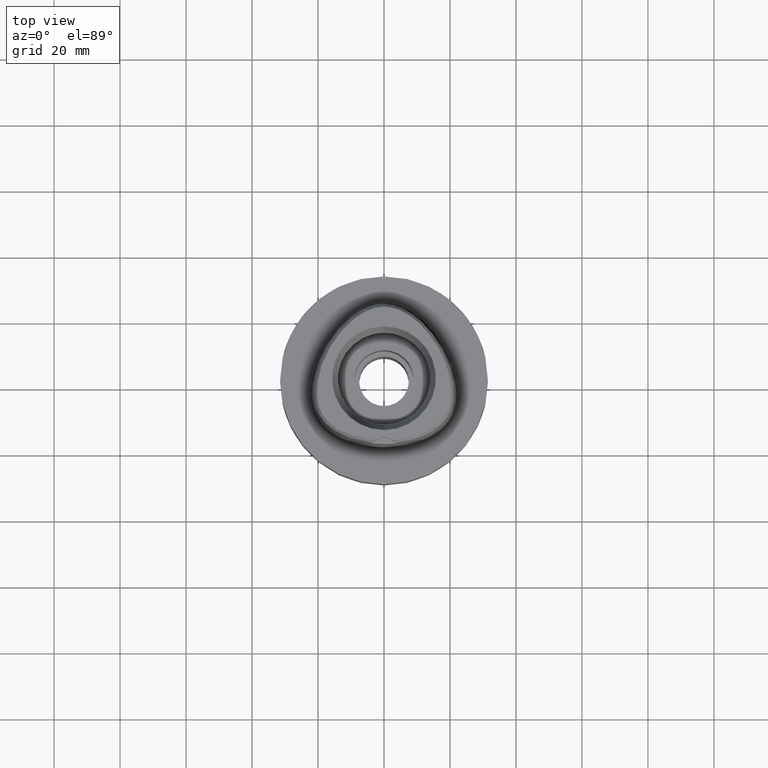
[diagram: clean part render]
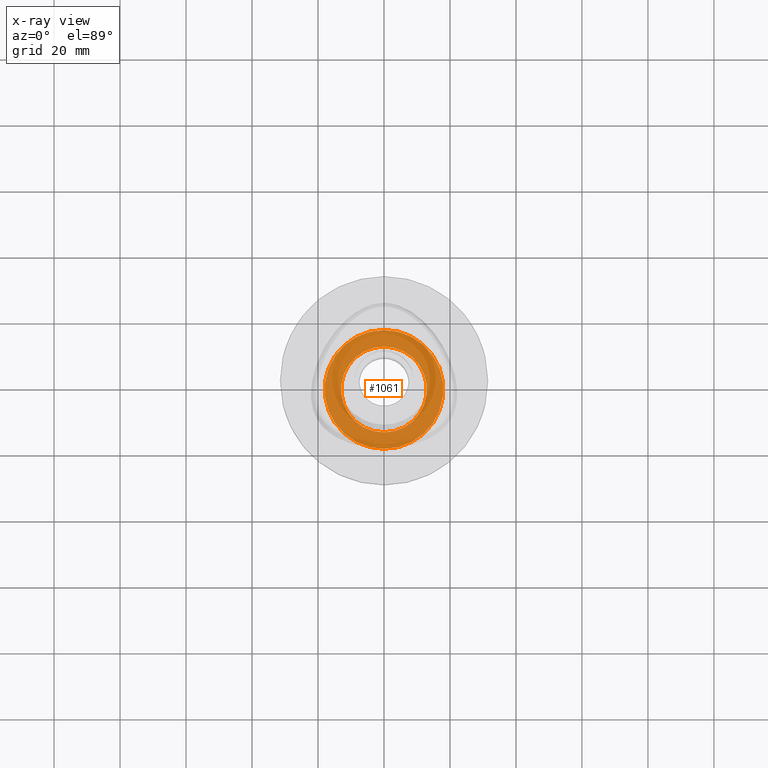
[diagram: x-ray — body ghosted, one internal face saturated and labeled with its STEP entity id]
A machine part, top view, then the same camera in x-ray: the body is ghosted and one INTERNAL B-rep face — a face not visible from any outside direction — is saturated and labeled: STEP entity #1061.
In plain terms, the highlighted planar face has unit normal (0, 0, -1).
Its self-contained STEP definition (entity closure, byte-faithful):
#62 = CARTESIAN_POINT ( 'NONE',  ( 0.0000000000000000000, 18.00000000000000000, -10.80000000000000071 ) ) ;
#302 = PLANE ( 'NONE',  #680 ) ;
#576 = ORIENTED_EDGE ( 'NONE', *, *, #3078, .F. ) ;
#602 = CARTESIAN_POINT ( 'NONE',  ( 0.0000000000000000000, 0.0000000000000000000, -10.80000000000000071 ) ) ;
#646 = EDGE_CURVE ( 'NONE', #2936, #2475, #2388, .T. ) ;
#680 = AXIS2_PLACEMENT_3D ( 'NONE', #3754, #1405, #2618 ) ;
#906 = ORIENTED_EDGE ( 'NONE', *, *, #3209, .F. ) ;
#994 = VERTEX_POINT ( 'NONE', #4279 ) ;
#1022 = DIRECTION ( 'NONE',  ( 0.0000000000000000000, 1.000000000000000000, 0.0000000000000000000 ) ) ;
#1061 = ADVANCED_FACE ( 'NONE', ( #5014, #1154 ), #302, .F. ) ;
#1154 = FACE_BOUND ( 'NONE', #4589, .T. ) ;
#1244 = AXIS2_PLACEMENT_3D ( 'NONE', #2456, #4993, #4174 ) ;
#1256 = DIRECTION ( 'NONE',  ( 0.0000000000000000000, -1.000000000000000000, 0.0000000000000000000 ) ) ;
#1362 = DIRECTION ( 'NONE',  ( 0.0000000000000000000, 0.0000000000000000000, -1.000000000000000000 ) ) ;
#1405 = DIRECTION ( 'NONE',  ( 0.0000000000000000000, 0.0000000000000000000, -1.000000000000000000 ) ) ;
#1605 = ORIENTED_EDGE ( 'NONE', *, *, #646, .F. ) ;
#1886 = CARTESIAN_POINT ( 'NONE',  ( 0.0000000000000000000, 13.00000000000000000, -10.80000000000000071 ) ) ;
#2193 = EDGE_CURVE ( 'NONE', #4840, #994, #2753, .T. ) ;
#2388 = CIRCLE ( 'NONE', #4543, 13.00000000000000000 ) ;
#2431 = DIRECTION ( 'NONE',  ( 0.0000000000000000000, 0.0000000000000000000, 1.000000000000000000 ) ) ;
#2456 = CARTESIAN_POINT ( 'NONE',  ( 0.0000000000000000000, 0.0000000000000000000, -10.80000000000000071 ) ) ;
#2475 = VERTEX_POINT ( 'NONE', #1886 ) ;
#2618 = DIRECTION ( 'NONE',  ( 0.0000000000000000000, -1.000000000000000000, 0.0000000000000000000 ) ) ;
#2675 = CIRCLE ( 'NONE', #2954, 13.00000000000000000 ) ;
#2753 = CIRCLE ( 'NONE', #4107, 18.00000000000000000 ) ;
#2936 = VERTEX_POINT ( 'NONE', #4010 ) ;
#2954 = AXIS2_PLACEMENT_3D ( 'NONE', #4175, #2431, #3762 ) ;
#3034 = DIRECTION ( 'NONE',  ( 0.0000000000000000000, 0.0000000000000000000, 1.000000000000000000 ) ) ;
#3078 = EDGE_CURVE ( 'NONE', #2475, #2936, #2675, .T. ) ;
#3209 = EDGE_CURVE ( 'NONE', #994, #4840, #4934, .T. ) ;
#3754 = CARTESIAN_POINT ( 'NONE',  ( 0.0000000000000000000, 0.0000000000000000000, -10.80000000000000071 ) ) ;
#3762 = DIRECTION ( 'NONE',  ( 0.0000000000000000000, 1.000000000000000000, 0.0000000000000000000 ) ) ;
#3792 = CARTESIAN_POINT ( 'NONE',  ( 0.0000000000000000000, 0.0000000000000000000, -10.80000000000000071 ) ) ;
#4010 = CARTESIAN_POINT ( 'NONE',  ( 0.0000000000000000000, -13.00000000000000000, -10.80000000000000071 ) ) ;
#4107 = AXIS2_PLACEMENT_3D ( 'NONE', #602, #1362, #1022 ) ;
#4174 = DIRECTION ( 'NONE',  ( 0.0000000000000000000, -1.000000000000000000, 0.0000000000000000000 ) ) ;
#4175 = CARTESIAN_POINT ( 'NONE',  ( 0.0000000000000000000, 0.0000000000000000000, -10.80000000000000071 ) ) ;
#4279 = CARTESIAN_POINT ( 'NONE',  ( 0.0000000000000000000, -18.00000000000000000, -10.80000000000000071 ) ) ;
#4530 = ORIENTED_EDGE ( 'NONE', *, *, #2193, .F. ) ;
#4536 = EDGE_LOOP ( 'NONE', ( #4530, #906 ) ) ;
#4543 = AXIS2_PLACEMENT_3D ( 'NONE', #3792, #3034, #1256 ) ;
#4589 = EDGE_LOOP ( 'NONE', ( #576, #1605 ) ) ;
#4840 = VERTEX_POINT ( 'NONE', #62 ) ;
#4934 = CIRCLE ( 'NONE', #1244, 18.00000000000000000 ) ;
#4993 = DIRECTION ( 'NONE',  ( 0.0000000000000000000, 0.0000000000000000000, -1.000000000000000000 ) ) ;
#5014 = FACE_OUTER_BOUND ( 'NONE', #4536, .T. ) ;